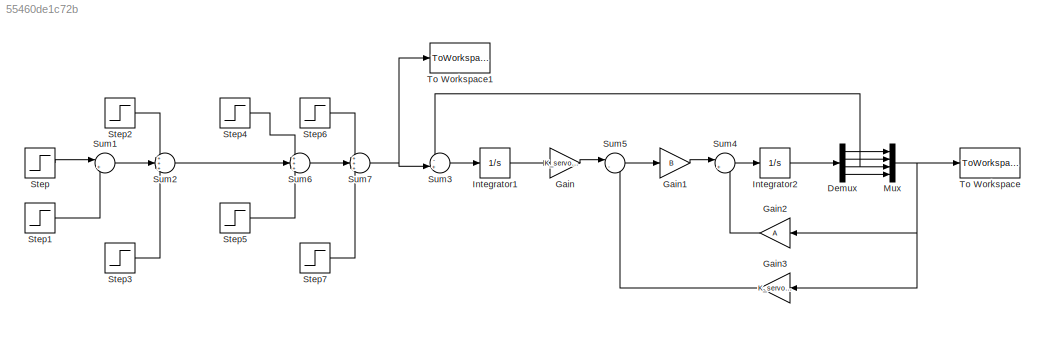
MODEL slx_55460de1c72b
KIND model
CONFIG AbsTol = auto
CONFIG EnableMultiTasking = off
CONFIG FixedStep = auto
CONFIG MaxStep = auto
CONFIG MinStep = auto
CONFIG RelTol = 1e-3
CONFIG SampleTimeConstraint = Unconstrained
CONFIG Solver = VariableStepAuto
CONFIG SolverName = VariableStepAuto
CONFIG StartTime = 0.0
CONFIG StopTime = 45.0
BLOCK [Demux] Demux
  DisplayOption = bar
  Ports = [1, 4]
BLOCK [Gain] Gain
  Gain = K_servo(5)
  OutDataTypeStr = Inherit: Inherit via internal rule
  ParamDataTypeStr = Inherit: Inherit via internal rule
  SaturateOnIntegerOverflow = off
BLOCK [Gain] Gain1
  Gain = B
  Multiplication = Matrix(K*u)
  OutDataTypeStr = Inherit: Inherit via internal rule
  ParamDataTypeStr = Inherit: Inherit via internal rule
  SaturateOnIntegerOverflow = off
BLOCK [Gain] Gain2
  Gain = A
  Multiplication = Matrix(K*u)
  OutDataTypeStr = Inherit: Inherit via internal rule
  ParamDataTypeStr = Inherit: Inherit via internal rule
  SaturateOnIntegerOverflow = off
BLOCK [Gain] Gain3
  Gain = K_servo(1:4)
  Multiplication = Matrix(K*u)
  OutDataTypeStr = Inherit: Inherit via internal rule
  ParamDataTypeStr = Inherit: Inherit via internal rule
  SaturateOnIntegerOverflow = off
BLOCK [Integrator] Integrator1
  InitialCondition = initTheta
  Ports = [1, 1]
BLOCK [Integrator] Integrator2
  Ports = [1, 1]
BLOCK [Mux] Mux
  DisplayOption = bar
  Ports = [4, 1]
BLOCK [Step] Step
  After = wantx1
  SampleTime = 0
  Time = 5
BLOCK [Step] Step1
  After = -wantx1
  SampleTime = 0
  Time = 10
BLOCK [Step] Step2
  After = -wantx1
  SampleTime = 0
  Time = 15
BLOCK [Step] Step3
  After = wantx1
  SampleTime = 0
  Time = 20
BLOCK [Step] Step4
  After = wantx2
  SampleTime = 0
  Time = 25
BLOCK [Step] Step5
  After = -wantx2
  SampleTime = 0
  Time = 30
BLOCK [Step] Step6
  After = -wantx2
  SampleTime = 0
  Time = 35
BLOCK [Step] Step7
  After = wantx2
  SampleTime = 0
  Time = 40
BLOCK [Sum] Sum1
  IconShape = round
  InputSameDT = off
  Inputs = |++
  OutDataTypeStr = Inherit: Inherit via internal rule
  Ports = [2, 1]
  SaturateOnIntegerOverflow = off
BLOCK [Sum] Sum2
  IconShape = round
  InputSameDT = off
  Inputs = +++
  OutDataTypeStr = Inherit: Inherit via internal rule
  Ports = [3, 1]
  SaturateOnIntegerOverflow = off
BLOCK [Sum] Sum3
  IconShape = round
  InputSameDT = off
  Inputs = -+|
  OutDataTypeStr = Inherit: Inherit via internal rule
  Ports = [2, 1]
  SaturateOnIntegerOverflow = off
BLOCK [Sum] Sum4
  IconShape = round
  InputSameDT = off
  Inputs = |++
  OutDataTypeStr = Inherit: Inherit via internal rule
  Ports = [2, 1]
  SaturateOnIntegerOverflow = off
BLOCK [Sum] Sum5
  IconShape = round
  InputSameDT = off
  Inputs = |--
  OutDataTypeStr = Inherit: Inherit via internal rule
  Ports = [2, 1]
  SaturateOnIntegerOverflow = off
BLOCK [Sum] Sum6
  IconShape = round
  InputSameDT = off
  Inputs = +++
  OutDataTypeStr = Inherit: Inherit via internal rule
  Ports = [3, 1]
  SaturateOnIntegerOverflow = off
BLOCK [Sum] Sum7
  IconShape = round
  InputSameDT = off
  Inputs = +++
  OutDataTypeStr = Inherit: Inherit via internal rule
  Ports = [3, 1]
  SaturateOnIntegerOverflow = off
BLOCK [ToWorkspace] To Workspace
  FixptAsFi = on
  MaxDataPoints = inf
  Ports = [1]
  SampleTime = -1
  VariableName = LQ_state
BLOCK [ToWorkspace] To Workspace1
  FixptAsFi = on
  MaxDataPoints = inf
  Ports = [1]
  SampleTime = -1
  VariableName = ref
LINE Demux:1 -> Mux:1
LINE Demux:2 -> Mux:2
NET Demux:3 -> Mux:3, Sum3:1
LINE Demux:4 -> Mux:4
LINE Gain1:1 -> Sum4:1
LINE Gain2:1 -> Sum4:2
LINE Gain3:1 -> Sum5:2
LINE Gain:1 -> Sum5:1
LINE Integrator1:1 -> Gain:1
LINE Integrator2:1 -> Demux:1
NET Mux:1 -> Gain2:1, Gain3:1, To Workspace:1
LINE Step1:1 -> Sum1:2
LINE Step2:1 -> Sum2:1
LINE Step3:1 -> Sum2:3
LINE Step4:1 -> Sum6:1
LINE Step5:1 -> Sum6:3
LINE Step6:1 -> Sum7:1
LINE Step7:1 -> Sum7:3
LINE Step:1 -> Sum1:1
LINE Sum1:1 -> Sum2:2
LINE Sum2:1 -> Sum6:2
LINE Sum3:1 -> Integrator1:1
LINE Sum4:1 -> Integrator2:1
LINE Sum5:1 -> Gain1:1
LINE Sum6:1 -> Sum7:2
NET Sum7:1 -> Sum3:2, To Workspace1:1
note: NET lines group one-source signal fan-out (src -> all destinations, sorted); 1:1 wires keep LINE
